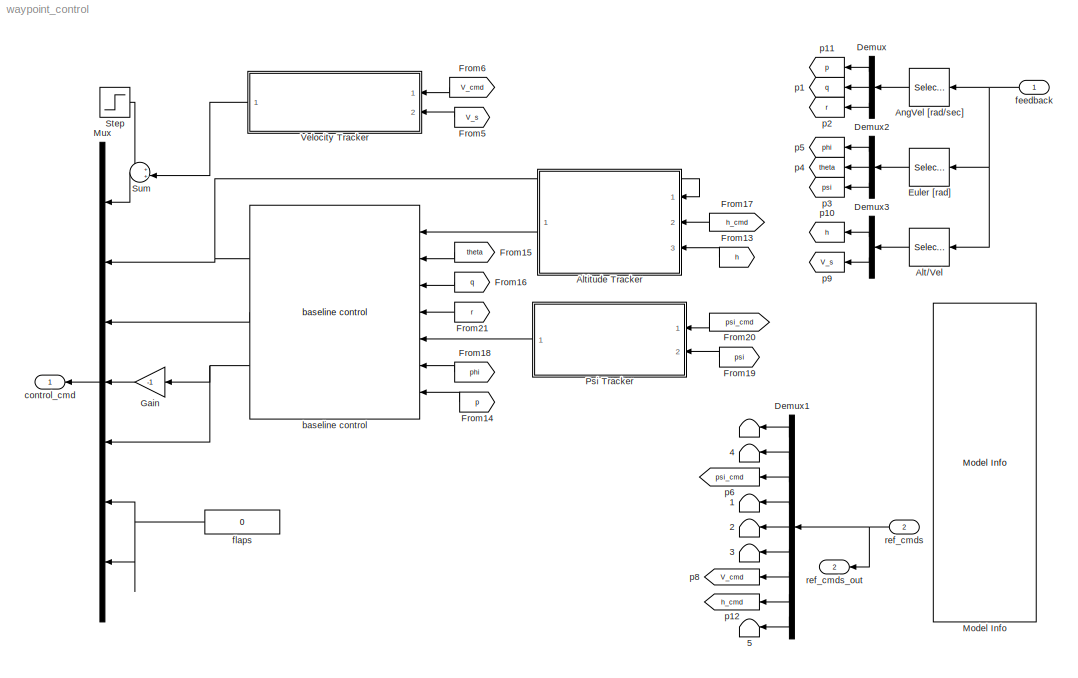
MODEL waypoint_control
KIND model
BLOCK [Terminator]  
  SID = 262
BLOCK [Terminator]  1
  SID = 199
BLOCK [Terminator]  2
  SID = 210
BLOCK [Terminator]  3
  SID = 211
BLOCK [Terminator]  4
  SID = 243
BLOCK [Terminator]  5
  SID = 213
BLOCK [Selector] Alt//Vel
  IndexOptions = Index vector (dialog)
  Indices = [10:11]
  InputPortWidth = 19
  OutputSizes = 1
  Ports = [1, 1]
  SID = 12
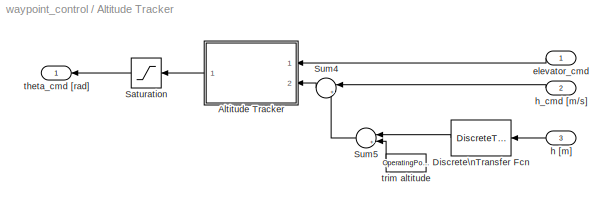
BLOCK [SubSystem] Altitude Tracker
  FunctionWithSeparateData = off
  MaskHideContents = off
  MinAlgLoopOccurrences = off
  Opaque = off
  Ports = [3, 1]
  PropExecContextOutsideSubsystem = off
  RTWSystemCode = Auto
  RequestExecContextInheritance = off
  SID = 323
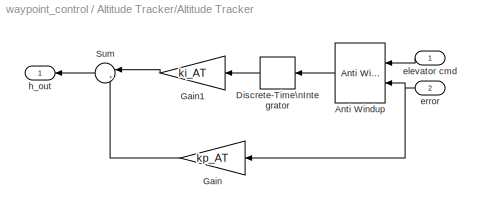
BLOCK [SubSystem] Altitude Tracker/Altitude Tracker
  FunctionWithSeparateData = off
  MaskHideContents = off
  MinAlgLoopOccurrences = off
  Opaque = off
  Ports = [2, 1]
  PropExecContextOutsideSubsystem = off
  RTWSystemCode = Auto
  RequestExecContextInheritance = off
  SID = 358
BLOCK [Reference] Altitude Tracker/Altitude Tracker/Anti Windup  REF=Actuator_Lib/Anti Windup
  FunctionWithSeparateData = off
  MAX_DEF = AC.Actuator.elevator.PosLim-TrimCondition.Inputs.elevator
  MIN_DEF = AC.Actuator.elevator.NegLim-TrimCondition.Inputs.elevator
  Ports = [2, 1]
  RTWMemSecDataConstants = Inherit from model
  RTWMemSecDataInternal = Inherit from model
  RTWMemSecDataParameters = Inherit from model
  RTWMemSecFuncExecute = Inherit from model
  RTWMemSecFuncInitTerm = Inherit from model
  SID = 361
  ShowPortLabels = FromPortIcon
  SourceBlock = Actuator_Lib/Anti Windup
  SourceType = Integrator Anti-Windup
  SystemSampleTime = -1
  gain_sign = on
BLOCK [DiscreteIntegrator] Altitude Tracker/Altitude Tracker/Discrete-Time\nIntegrator
  ExternalReset = none
  ICPrevOutput = DiscIntNeverNeededParam
  ICPrevScaledInput = DiscIntNeverNeededParam
  InitialConditionSource = internal
  IntegratorMethod = Integration: Forward Euler
  OutDataType = fixdt(1, 16)
  OutScaling = 2^0
  Ports = [1, 1]
  SID = 362
  SampleTime = .02
BLOCK [Gain] Altitude Tracker/Altitude Tracker/Gain
  Gain = kp_AT
  OutDataType = fixdt(1, 16)
  OutDataTypeMode = Inherit via internal rule
  OutDataTypeStr = Inherit: Inherit via internal rule
  OutScaling = 2^0
  ParamDataTypeStr = Inherit: Inherit via internal rule
  ParameterDataType = fixdt(1, 16)
  ParameterDataTypeMode = Inherit via internal rule
  ParameterScaling = 2^0
  SID = 363
  SaturateOnIntegerOverflow = off
BLOCK [Gain] Altitude Tracker/Altitude Tracker/Gain1
  Gain = ki_AT
  OutDataType = fixdt(1, 16)
  OutDataTypeMode = Inherit via internal rule
  OutDataTypeStr = Inherit: Inherit via internal rule
  OutScaling = 2^0
  ParamDataTypeStr = Inherit: Inherit via internal rule
  ParameterDataType = fixdt(1, 16)
  ParameterDataTypeMode = Inherit via internal rule
  ParameterScaling = 2^0
  SID = 364
  SaturateOnIntegerOverflow = off
BLOCK [Sum] Altitude Tracker/Altitude Tracker/Sum
  IconShape = round
  InputSameDT = off
  Inputs = |++
  OutDataType = fixdt(1, 16)
  OutDataTypeMode = Inherit via internal rule
  OutDataTypeStr = Inherit: Inherit via internal rule
  OutScaling = 2^0
  Ports = [2, 1]
  SID = 365
  SaturateOnIntegerOverflow = off
BLOCK [Inport] Altitude Tracker/Altitude Tracker/elevator cmd
  IconDisplay = Port number
  OutDataType = fixdt(1, 16)
  OutScaling = 2^0
  SID = 359
BLOCK [Inport] Altitude Tracker/Altitude Tracker/error
  IconDisplay = Port number
  OutDataType = fixdt(1, 16)
  OutScaling = 2^0
  Port = 2
  SID = 360
BLOCK [Outport] Altitude Tracker/Altitude Tracker/h_out
  IconDisplay = Port number
  OutDataType = fixdt(1, 16)
  OutScaling = 2^0
  SID = 366
BLOCK [DiscreteTransferFcn] Altitude Tracker/Discrete\nTransfer Fcn
  Denominator = [1 LP_filter(2,2)]
  InitialStates = OperatingPoint.op_report.Outputs(4).y/LP_filter(1,2)
  Numerator = [LP_filter(1,2)]
  Ports = [1, 1]
  SID = 367
  SampleTime = SampleTime
BLOCK [Saturate] Altitude Tracker/Saturation
  LowerLimit = -theta_sat*pi/180
  Ports = [1, 1]
  SID = 370
  SampleTime = SampleTime
  UpperLimit = theta_sat*pi/180
BLOCK [Sum] Altitude Tracker/Sum4
  IconShape = round
  InputSameDT = off
  Inputs = |+-
  OutDataTypeMode = Inherit via internal rule
  OutDataTypeStr = Inherit: Inherit via internal rule
  Ports = [2, 1]
  SID = 371
  SampleTime = SampleTime
  SaturateOnIntegerOverflow = off
BLOCK [Sum] Altitude Tracker/Sum5
  IconShape = round
  InputSameDT = off
  Inputs = |+-
  OutDataTypeMode = Inherit via internal rule
  OutDataTypeStr = Inherit: Inherit via internal rule
  Ports = [2, 1]
  SID = 372
  SampleTime = SampleTime
  SaturateOnIntegerOverflow = off
BLOCK [Inport] Altitude Tracker/elevator_cmd
  IconDisplay = Port number
  SID = 374
BLOCK [Inport] Altitude Tracker/h [m]
  IconDisplay = Port number
  Port = 3
  SID = 327
BLOCK [Inport] Altitude Tracker/h_cmd [m//s]
  IconDisplay = Port number
  Port = 2
  SID = 324
BLOCK [Outport] Altitude Tracker/theta_cmd [rad]
  IconDisplay = Port number
  SID = 357
BLOCK [Constant] Altitude Tracker/trim altitude
  SID = 373
  Value = OperatingPoint.op_report.Outputs(4).y
BLOCK [Selector] AngVel [rad//sec]
  IndexOptions = Index vector (dialog)
  Indices = [4:6]
  InputPortWidth = 19
  OutputSizes = 1
  Ports = [1, 1]
  SID = 37
BLOCK [Demux] Demux
  DisplayOption = bar
  Outputs = 3
  Ports = [1, 3]
  SID = 38
BLOCK [Demux] Demux1
  DisplayOption = bar
  Outputs = [1 1 1 1 1 1 1 1 4]
  Ports = [1, 9]
  SID = 218
BLOCK [Demux] Demux2
  DisplayOption = bar
  Outputs = 3
  Ports = [1, 3]
  SID = 40
BLOCK [Demux] Demux3
  DisplayOption = bar
  Outputs = 2
  Ports = [1, 2]
  SID = 41
BLOCK [Selector] Euler [rad]
  IndexOptions = Index vector (dialog)
  Indices = [1:3]
  InputPortWidth = 19
  OutputSizes = 1
  Ports = [1, 1]
  SID = 42
BLOCK [From] From13
  GotoTag = h
  SID = 291
BLOCK [From] From14
  GotoTag = p
  SID = 292
BLOCK [From] From15
  GotoTag = theta
  SID = 293
BLOCK [From] From16
  GotoTag = q
  SID = 294
BLOCK [From] From17
  GotoTag = h_cmd
  SID = 295
BLOCK [From] From18
  GotoTag = phi
  SID = 296
BLOCK [From] From19
  GotoTag = psi
  SID = 297
BLOCK [From] From20
  GotoTag = psi_cmd
  SID = 298
BLOCK [From] From21
  GotoTag = r
  SID = 299
BLOCK [From] From5
  GotoTag = V_s
  SID = 49
BLOCK [From] From6
  GotoTag = V_cmd
  SID = 50
BLOCK [Gain] Gain
  Gain = -1
  OutDataTypeMode = Inherit via internal rule
  OutDataTypeStr = Inherit: Inherit via internal rule
  ParamDataTypeStr = Inherit: Inherit via internal rule
  ParameterDataTypeMode = Inherit via internal rule
  SID = 54
  SaturateOnIntegerOverflow = off
BLOCK [Reference] Model Info  REF=simulink/Model-Wide\nUtilities/Model Info
  BlockCM = None
  DisplayStringWithTags = Ref Cmd Port Info\n\n1. phi_cmd\n2. theta_cmd\n3. psi_cmd\n4. p_cmd\n5. q_cmd\n6. r_cmd\n7. V_s_cmd\n8. h_cmd\n9. gndtrk_cmd\n10. aoa_cmd\n11. aos_cmd\n12. gamma_cmd\n13. signal_0\n14. signal_1\n15. signal_2\n16. signal_3\n17. signal_4\n18. signal_5\n19. signal_6\n20. signal_7\n21. signal_8\n22. signal_9
  Frame = on
  FunctionWithSeparateData = off
  HorizontalTextAlignment = Center
  InitialBlockCM = None
  LeftAlignmentValue = 0.5
  MaskDisplayString = Ref Cmd Port Info\\n\\n1. phi_cmd\\n2. theta_cmd\\n3. psi_cmd\\n4. p_cmd\\n5. q_cmd\\n6. r_cmd\\n7. V_s_cmd\\n8. h_cmd\\n9. gndtrk_cmd\\n10. aoa_cmd\\n11. aos_cmd\\n12. gamma_cmd\\n13. signal_0\\n14. signal_1\\n15. signal_2\\n16. signal_3\\n17. signal_4\\n18. signal_5\\n19. signal_6\\n20. signal_7\\n21. signal_8\\n22. signal_9
  Ports = []
  RTWMemSecDataConstants = Inherit from model
  RTWMemSecDataInternal = Inherit from model
  RTWMemSecDataParameters = Inherit from model
  RTWMemSecFuncExecute = Inherit from model
  RTWMemSecFuncInitTerm = Inherit from model
  SID = 222
  ShowPortLabels = FromPortIcon
  SourceBlock = simulink/Model-Wide\nUtilities/Model Info
  SourceBlockDiagram = waypoint_control
  SourceType = CMBlock
  SystemSampleTime = -1
  TagMaxNumber = 20
BLOCK [Mux] Mux
  DisplayOption = bar
  Inputs = 7
  Ports = [7, 1]
  SID = 56
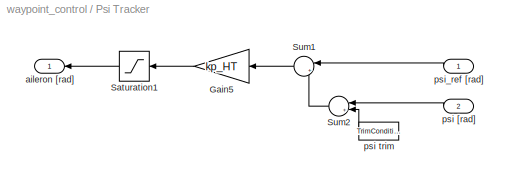
BLOCK [SubSystem] Psi Tracker
  FunctionWithSeparateData = off
  MaskHideContents = off
  MinAlgLoopOccurrences = off
  Opaque = off
  Ports = [2, 1]
  PropExecContextOutsideSubsystem = off
  RTWSystemCode = Auto
  RequestExecContextInheritance = off
  SID = 394
BLOCK [Gain] Psi Tracker/Gain5
  Gain = kp_HT
  OutDataTypeMode = Inherit via internal rule
  OutDataTypeStr = Inherit: Inherit via internal rule
  ParamDataTypeStr = Inherit: Inherit via internal rule
  ParameterDataTypeMode = Inherit via internal rule
  SID = 422
  SaturateOnIntegerOverflow = off
BLOCK [Saturate] Psi Tracker/Saturation1
  LowerLimit = -phi_sat*pi/180
  Ports = [1, 1]
  SID = 423
  SampleTime = SampleTime
  UpperLimit = phi_sat*pi/180
BLOCK [Sum] Psi Tracker/Sum1
  IconShape = round
  InputSameDT = off
  Inputs = |+-
  OutDataTypeMode = Inherit via internal rule
  OutDataTypeStr = Inherit: Inherit via internal rule
  Ports = [2, 1]
  SID = 424
  SampleTime = SampleTime
  SaturateOnIntegerOverflow = off
BLOCK [Sum] Psi Tracker/Sum2
  IconShape = round
  InputSameDT = off
  Inputs = |+-
  OutDataTypeMode = Inherit via internal rule
  OutDataTypeStr = Inherit: Inherit via internal rule
  Ports = [2, 1]
  SID = 425
  SampleTime = SampleTime
  SaturateOnIntegerOverflow = off
BLOCK [Outport] Psi Tracker/aileron [rad]
  IconDisplay = Port number
  SID = 419
BLOCK [Inport] Psi Tracker/psi [rad]
  IconDisplay = Port number
  Port = 2
  SID = 396
BLOCK [Constant] Psi Tracker/psi trim
  SID = 426
  Value = TrimCondition.AttitudeIni(3)
BLOCK [Inport] Psi Tracker/psi_ref [rad]
  IconDisplay = Port number
  SID = 397
BLOCK [Step] Step
  After = .03
  SID = 575
  SampleTime = SampleTime
  Time = 30
BLOCK [Sum] Sum
  IconShape = round
  InputSameDT = off
  Inputs = ++|
  OutDataType = fixdt(1, 16)
  OutDataTypeMode = Inherit via internal rule
  OutDataTypeStr = Inherit: Inherit via internal rule
  OutScaling = 2^0
  Ports = [2, 1]
  SID = 576
  SampleTime = SampleTime
  SaturateOnIntegerOverflow = off
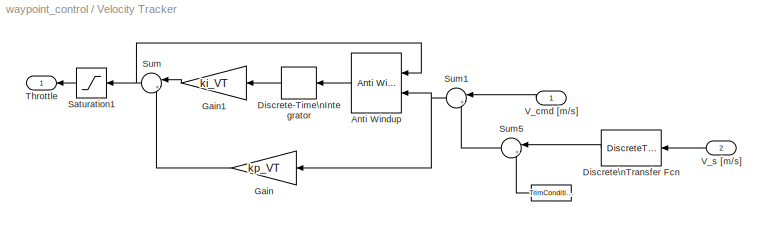
BLOCK [SubSystem] Velocity Tracker
  FunctionWithSeparateData = off
  MaskHideContents = off
  MinAlgLoopOccurrences = off
  Opaque = off
  Ports = [2, 1]
  PropExecContextOutsideSubsystem = off
  RTWSystemCode = Auto
  RequestExecContextInheritance = off
  SID = 78
BLOCK [Constant] Velocity Tracker/    
  SID = 115
  Value = TrimCondition.WindAxesIni(1)
BLOCK [Reference] Velocity Tracker/Anti Windup  REF=Actuator_Lib/Anti Windup
  FunctionWithSeparateData = off
  MAX_DEF = AC.Actuator.throttle.PosLim-TrimCondition.Inputs.throttle
  MIN_DEF = AC.Actuator.throttle.NegLim-TrimCondition.Inputs.throttle
  Ports = [2, 1]
  RTWMemSecDataConstants = Inherit from model
  RTWMemSecDataInternal = Inherit from model
  RTWMemSecDataParameters = Inherit from model
  RTWMemSecFuncExecute = Inherit from model
  RTWMemSecFuncInitTerm = Inherit from model
  SID = 242
  ShowPortLabels = FromPortIcon
  SourceBlock = Actuator_Lib/Anti Windup
  SourceType = Integrator Anti-Windup
  SystemSampleTime = -1
  gain_sign = on
BLOCK [DiscreteIntegrator] Velocity Tracker/Discrete-Time\nIntegrator
  ExternalReset = none
  ICPrevOutput = DiscIntNeverNeededParam
  ICPrevScaledInput = DiscIntNeverNeededParam
  InitialConditionSource = internal
  IntegratorMethod = Integration: Forward Euler
  OutDataType = fixdt(1, 16)
  OutScaling = 2^0
  Ports = [1, 1]
  SID = 81
  SampleTime = .02
BLOCK [DiscreteTransferFcn] Velocity Tracker/Discrete\nTransfer Fcn
  Denominator = [1 LP_filter(2,2)]
  InitialStates = TrimCondition.target.V_s/LP_filter(1,2)
  Numerator = [LP_filter(1,2)]
  Ports = [1, 1]
  SID = 277
  SampleTime = SampleTime
BLOCK [Gain] Velocity Tracker/Gain
  Gain = kp_VT
  OutDataType = fixdt(1, 16)
  OutDataTypeMode = Inherit via internal rule
  OutDataTypeStr = Inherit: Inherit via internal rule
  OutScaling = 2^0
  ParamDataTypeStr = Inherit: Inherit via internal rule
  ParameterDataType = fixdt(1, 16)
  ParameterDataTypeMode = Inherit via internal rule
  ParameterScaling = 2^0
  SID = 82
  SaturateOnIntegerOverflow = off
BLOCK [Gain] Velocity Tracker/Gain1
  Gain = ki_VT
  OutDataType = fixdt(1, 16)
  OutDataTypeMode = Inherit via internal rule
  OutDataTypeStr = Inherit: Inherit via internal rule
  OutScaling = 2^0
  ParamDataTypeStr = Inherit: Inherit via internal rule
  ParameterDataType = fixdt(1, 16)
  ParameterDataTypeMode = Inherit via internal rule
  ParameterScaling = 2^0
  SID = 83
  SaturateOnIntegerOverflow = off
BLOCK [Saturate] Velocity Tracker/Saturation1
  LowerLimit = AC.Actuator.throttle.NegLim-TrimCondition.Inputs.throttle
  Ports = [1, 1]
  SID = 234
  SampleTime = SampleTime
  UpperLimit = AC.Actuator.throttle.PosLim-TrimCondition.Inputs.throttle
BLOCK [Sum] Velocity Tracker/Sum
  IconShape = round
  InputSameDT = off
  Inputs = |++
  OutDataType = fixdt(1, 16)
  OutDataTypeMode = Inherit via internal rule
  OutDataTypeStr = Inherit: Inherit via internal rule
  OutScaling = 2^0
  Ports = [2, 1]
  SID = 84
  SaturateOnIntegerOverflow = off
BLOCK [Sum] Velocity Tracker/Sum1
  IconShape = round
  InputSameDT = off
  Inputs = |+-
  OutDataType = fixdt(1, 16)
  OutDataTypeMode = Inherit via internal rule
  OutDataTypeStr = Inherit: Inherit via internal rule
  OutScaling = 2^0
  Ports = [2, 1]
  SID = 85
  SaturateOnIntegerOverflow = off
BLOCK [Sum] Velocity Tracker/Sum5
  IconShape = round
  InputSameDT = off
  Inputs = |+-
  OutDataTypeMode = Inherit via internal rule
  OutDataTypeStr = Inherit: Inherit via internal rule
  Ports = [2, 1]
  SID = 116
  SampleTime = SampleTime
  SaturateOnIntegerOverflow = off
BLOCK [Outport] Velocity Tracker/Throttle 
  IconDisplay = Port number
  SID = 86
BLOCK [Inport] Velocity Tracker/V_cmd [m//s]
  IconDisplay = Port number
  SID = 79
BLOCK [Inport] Velocity Tracker/V_s [m//s]
  IconDisplay = Port number
  Port = 2
  SID = 80
BLOCK [Reference] baseline control  REF=Controller_Lib/baseline control
  FunctionWithSeparateData = off
  Ports = [7, 3]
  RTWMemSecDataConstants = Inherit from model
  RTWMemSecDataInternal = Inherit from model
  RTWMemSecDataParameters = Inherit from model
  RTWMemSecFuncExecute = Inherit from model
  RTWMemSecFuncInitTerm = Inherit from model
  SID = 289
  ShowPortLabels = FromPortIcon
  SourceBlock = Controller_Lib/baseline control
  SourceType = Baseline Controller
  SystemSampleTime = -1
  pitch = pitch_gains
  roll = roll_gains
  yaw_den = yaw_damper_den
  yaw_num = yaw_damper_num
BLOCK [Outport] control_cmd
  IconDisplay = Port number
  OutDataType = fixdt(1, 16)
  OutScaling = 2^0
  SID = 104
BLOCK [Inport] feedback
  IconDisplay = Port number
  OutDataType = fixdt(1, 16)
  OutScaling = 2^0
  SID = 1
BLOCK [Constant] flaps
  SID = 91
  Value = 0
BLOCK [Goto] p1
  GotoTag = q
  SID = 93
  TagVisibility = local
BLOCK [Goto] p10
  GotoTag = h
  SID = 94
  TagVisibility = local
BLOCK [Goto] p11
  GotoTag = p
  SID = 95
  TagVisibility = local
BLOCK [Goto] p12
  GotoTag = h_cmd
  SID = 96
  TagVisibility = local
BLOCK [Goto] p2
  GotoTag = r
  SID = 97
  TagVisibility = local
BLOCK [Goto] p3
  GotoTag = psi
  SID = 98
  TagVisibility = local
BLOCK [Goto] p4
  GotoTag = theta
  SID = 99
  TagVisibility = local
BLOCK [Goto] p5
  GotoTag = phi
  SID = 100
  TagVisibility = local
BLOCK [Goto] p6
  GotoTag = psi_cmd
  SID = 261
  TagVisibility = local
BLOCK [Goto] p8
  GotoTag = V_cmd
  SID = 102
  TagVisibility = local
BLOCK [Goto] p9
  GotoTag = V_s
  SID = 103
  TagVisibility = local
BLOCK [Inport] ref_cmds
  IconDisplay = Port number
  OutDataType = fixdt(1, 16)
  OutScaling = 2^0
  Port = 2
  SID = 197
BLOCK [Outport] ref_cmds_out
  IconDisplay = Port number
  OutDataType = fixdt(1, 16)
  OutScaling = 2^0
  Port = 2
  SID = 221
LINE Alt//Vel:1 -> Demux3:1
LINE Altitude Tracker/Altitude Tracker/Anti Windup:1 -> Altitude Tracker/Altitude Tracker/Discrete-Time\nIntegrator:1
LINE Altitude Tracker/Altitude Tracker/Discrete-Time\nIntegrator:1 -> Altitude Tracker/Altitude Tracker/Gain1:1
LINE Altitude Tracker/Altitude Tracker/Gain1:1 -> Altitude Tracker/Altitude Tracker/Sum:1
LINE Altitude Tracker/Altitude Tracker/Gain:1 -> Altitude Tracker/Altitude Tracker/Sum:2
LINE Altitude Tracker/Altitude Tracker/Sum:1 -> Altitude Tracker/Altitude Tracker/h_out:1
LINE Altitude Tracker/Altitude Tracker/elevator cmd:1 -> Altitude Tracker/Altitude Tracker/Anti Windup:1
NET Altitude Tracker/Altitude Tracker/error:1 -> Altitude Tracker/Altitude Tracker/Anti Windup:2, Altitude Tracker/Altitude Tracker/Gain:1
LINE Altitude Tracker/Altitude Tracker:1 -> Altitude Tracker/Saturation:1
LINE Altitude Tracker/Discrete\nTransfer Fcn:1 -> Altitude Tracker/Sum5:1
LINE Altitude Tracker/Saturation:1 -> Altitude Tracker/theta_cmd [rad]:1
LINE Altitude Tracker/Sum4:1 -> Altitude Tracker/Altitude Tracker:2
LINE Altitude Tracker/Sum5:1 -> Altitude Tracker/Sum4:2
LINE Altitude Tracker/elevator_cmd:1 -> Altitude Tracker/Altitude Tracker:1
LINE Altitude Tracker/h [m]:1 -> Altitude Tracker/Discrete\nTransfer Fcn:1
LINE Altitude Tracker/h_cmd [m//s]:1 -> Altitude Tracker/Sum4:1
LINE Altitude Tracker/trim altitude:1 -> Altitude Tracker/Sum5:2
LINE Altitude Tracker:1 -> baseline control:1
LINE AngVel [rad//sec]:1 -> Demux:1
LINE Demux1:1 ->  :1
LINE Demux1:2 ->  4:1
LINE Demux1:3 -> p6:1
LINE Demux1:4 ->  1:1
LINE Demux1:5 ->  2:1
LINE Demux1:6 ->  3:1
LINE Demux1:7 -> p8:1
LINE Demux1:8 -> p12:1
LINE Demux1:9 ->  5:1
LINE Demux2:1 -> p5:1
LINE Demux2:2 -> p4:1
LINE Demux2:3 -> p3:1
LINE Demux3:1 -> p10:1
LINE Demux3:2 -> p9:1
LINE Demux:1 -> p11:1
LINE Demux:2 -> p1:1
LINE Demux:3 -> p2:1
LINE Euler [rad]:1 -> Demux2:1
LINE From13:1 -> Altitude Tracker:3
LINE From14:1 -> baseline control:7
LINE From15:1 -> baseline control:2
LINE From16:1 -> baseline control:3
LINE From17:1 -> Altitude Tracker:2
LINE From18:1 -> baseline control:6
LINE From19:1 -> Psi Tracker:2
LINE From20:1 -> Psi Tracker:1
LINE From21:1 -> baseline control:4
LINE From5:1 -> Velocity Tracker:2
LINE From6:1 -> Velocity Tracker:1
LINE Gain:1 -> Mux:4
LINE Mux:1 -> control_cmd:1
LINE Psi Tracker/Gain5:1 -> Psi Tracker/Saturation1:1
LINE Psi Tracker/Saturation1:1 -> Psi Tracker/aileron [rad]:1
LINE Psi Tracker/Sum1:1 -> Psi Tracker/Gain5:1
LINE Psi Tracker/Sum2:1 -> Psi Tracker/Sum1:2
LINE Psi Tracker/psi [rad]:1 -> Psi Tracker/Sum2:1
LINE Psi Tracker/psi trim:1 -> Psi Tracker/Sum2:2
LINE Psi Tracker/psi_ref [rad]:1 -> Psi Tracker/Sum1:1
LINE Psi Tracker:1 -> baseline control:5
LINE Step:1 -> Sum:1
LINE Sum:1 -> Mux:1
LINE Velocity Tracker/    :1 -> Velocity Tracker/Sum5:2
LINE Velocity Tracker/Anti Windup:1 -> Velocity Tracker/Discrete-Time\nIntegrator:1
LINE Velocity Tracker/Discrete-Time\nIntegrator:1 -> Velocity Tracker/Gain1:1
LINE Velocity Tracker/Discrete\nTransfer Fcn:1 -> Velocity Tracker/Sum5:1
LINE Velocity Tracker/Gain1:1 -> Velocity Tracker/Sum:1
LINE Velocity Tracker/Gain:1 -> Velocity Tracker/Sum:2
LINE Velocity Tracker/Saturation1:1 -> Velocity Tracker/Throttle :1
NET Velocity Tracker/Sum1:1 -> Velocity Tracker/Anti Windup:2, Velocity Tracker/Gain:1
LINE Velocity Tracker/Sum5:1 -> Velocity Tracker/Sum1:2
NET Velocity Tracker/Sum:1 -> Velocity Tracker/Anti Windup:1, Velocity Tracker/Saturation1:1
LINE Velocity Tracker/V_cmd [m//s]:1 -> Velocity Tracker/Sum1:1
LINE Velocity Tracker/V_s [m//s]:1 -> Velocity Tracker/Discrete\nTransfer Fcn:1
LINE Velocity Tracker:1 -> Sum:2
NET baseline control:1 -> Altitude Tracker:1, Mux:2
LINE baseline control:2 -> Mux:3
NET baseline control:3 -> Gain:1, Mux:5
NET feedback:1 -> Alt//Vel:1, AngVel [rad//sec]:1, Euler [rad]:1
NET flaps:1 -> Mux:6, Mux:7
NET ref_cmds:1 -> Demux1:1, ref_cmds_out:1
note: NET lines group one-source signal fan-out (src -> all destinations, sorted); 1:1 wires keep LINE
